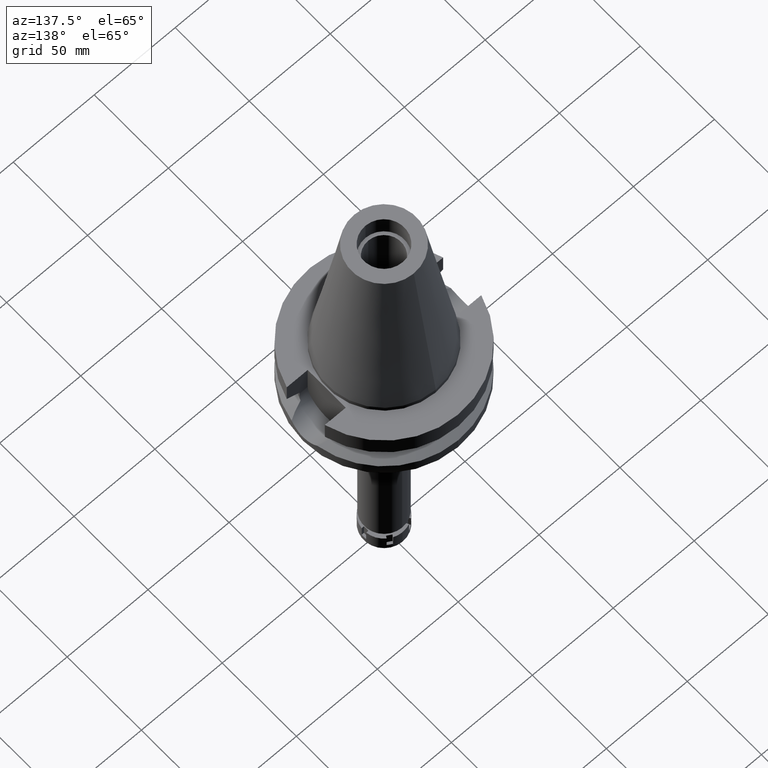
[diagram: clean part render]
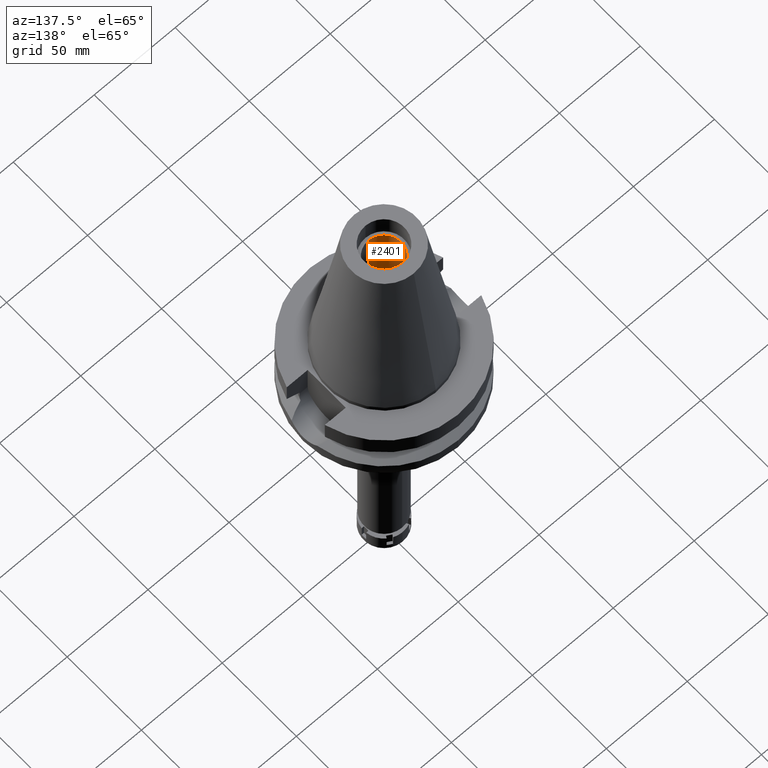
[diagram: same view with one face highlighted and labeled with its STEP entity id]
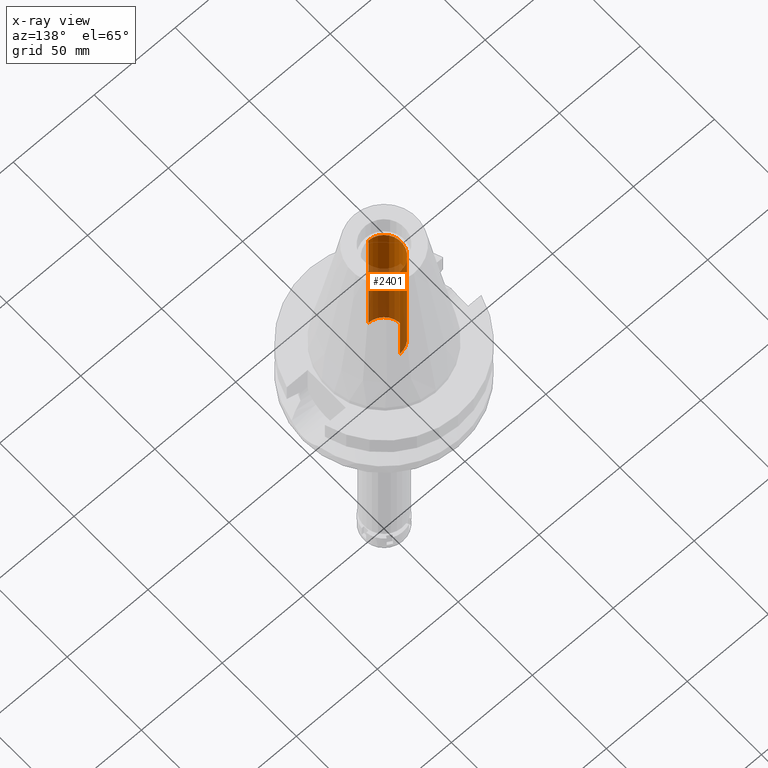
[diagram: x-ray of the same camera — body ghosted, the highlighted face saturated]
A machine part, auxiliary view. The second image highlights one B-rep face of the part: STEP entity #2401.
The next image is the same camera in x-ray: the body ghosted, the highlighted face saturated — about 57% of this face is hidden behind the body in this view.
In plain terms, the highlighted cylindrical surface (edge-blend (fillet) strip) has radius 10.6 mm, axis along (0, 0, -1).
Its self-contained STEP definition (entity closure, byte-faithful):
#447 = DIRECTION ( 'NONE',  ( 0.0000000000000000000, 1.000000000000000000, 0.0000000000000000000 ) ) ;
#558 = DIRECTION ( 'NONE',  ( 0.0000000000000000000, 0.0000000000000000000, 1.000000000000000000 ) ) ;
#621 = CARTESIAN_POINT ( 'NONE',  ( 0.0000000000000000000, 2.652462502272999887E-14, 116.5900000000000034 ) ) ;
#705 = CARTESIAN_POINT ( 'NONE',  ( 0.0000000000000000000, -10.59999999999999964, -1.278976924367999843E-13 ) ) ;
#1000 = AXIS2_PLACEMENT_3D ( 'NONE', #3579, #1273, #447 ) ;
#1248 = DIRECTION ( 'NONE',  ( 0.0000000000000000000, 0.0000000000000000000, -1.000000000000000000 ) ) ;
#1273 = DIRECTION ( 'NONE',  ( 0.0000000000000000000, 0.0000000000000000000, 1.000000000000000000 ) ) ;
#1304 = DIRECTION ( 'NONE',  ( 0.0000000000000000000, -1.000000000000000000, 0.0000000000000000000 ) ) ;
#1334 = EDGE_CURVE ( 'NONE', #2195, #2404, #2827, .T. ) ;
#1425 = EDGE_CURVE ( 'NONE', #3400, #1583, #1441, .T. ) ;
#1441 = LINE ( 'NONE', #2842, #2876 ) ;
#1583 = VERTEX_POINT ( 'NONE', #2400 ) ;
#2118 = ORIENTED_EDGE ( 'NONE', *, *, #1425, .F. ) ;
#2178 = ORIENTED_EDGE ( 'NONE', *, *, #3159, .T. ) ;
#2195 = VERTEX_POINT ( 'NONE', #3109 ) ;
#2254 = CIRCLE ( 'NONE', #1000, 10.59999999999999964 ) ;
#2400 = CARTESIAN_POINT ( 'NONE',  ( 0.0000000000000000000, -10.59999999999999964, 88.79999999999999716 ) ) ;
#2401 = ADVANCED_FACE ( 'NONE', ( #3484 ), #3196, .F. ) ;
#2404 = VERTEX_POINT ( 'NONE', #3007 ) ;
#2449 = DIRECTION ( 'NONE',  ( 0.0000000000000000000, -1.000000000000000000, 0.0000000000000000000 ) ) ;
#2556 = CIRCLE ( 'NONE', #2675, 10.59999999999999964 ) ;
#2675 = AXIS2_PLACEMENT_3D ( 'NONE', #3272, #1248, #1304 ) ;
#2827 = LINE ( 'NONE', #3120, #3526 ) ;
#2842 = CARTESIAN_POINT ( 'NONE',  ( 0.0000000000000000000, -10.59999999999999964, -1.278976924367999843E-13 ) ) ;
#2853 = AXIS2_PLACEMENT_3D ( 'NONE', #621, #3257, #2449 ) ;
#2864 = DIRECTION ( 'NONE',  ( 0.0000000000000000000, 0.0000000000000000000, 1.000000000000000000 ) ) ;
#2876 = VECTOR ( 'NONE', #2864, 1000.000000000000000 ) ;
#3007 = CARTESIAN_POINT ( 'NONE',  ( 0.0000000000000000000, 10.59999999999999964, 88.79999999999999716 ) ) ;
#3046 = EDGE_LOOP ( 'NONE', ( #3627, #2118, #2178, #3268 ) ) ;
#3109 = CARTESIAN_POINT ( 'NONE',  ( 0.0000000000000000000, 10.59999999999999964, -1.278976924367999843E-13 ) ) ;
#3120 = CARTESIAN_POINT ( 'NONE',  ( 0.0000000000000000000, 10.59999999999999964, -1.278976924367999843E-13 ) ) ;
#3159 = EDGE_CURVE ( 'NONE', #3400, #2195, #2556, .T. ) ;
#3196 = CYLINDRICAL_SURFACE ( 'NONE', #2853, 10.59999999999999964 ) ;
#3257 = DIRECTION ( 'NONE',  ( 0.0000000000000000000, 0.0000000000000000000, -1.000000000000000000 ) ) ;
#3268 = ORIENTED_EDGE ( 'NONE', *, *, #1334, .T. ) ;
#3272 = CARTESIAN_POINT ( 'NONE',  ( 0.0000000000000000000, 2.652462502272999887E-14, -1.278976924367999843E-13 ) ) ;
#3400 = VERTEX_POINT ( 'NONE', #705 ) ;
#3442 = EDGE_CURVE ( 'NONE', #2404, #1583, #2254, .T. ) ;
#3484 = FACE_OUTER_BOUND ( 'NONE', #3046, .T. ) ;
#3526 = VECTOR ( 'NONE', #558, 1000.000000000000000 ) ;
#3579 = CARTESIAN_POINT ( 'NONE',  ( 0.0000000000000000000, 2.652462502272999887E-14, 88.79999999999999716 ) ) ;
#3627 = ORIENTED_EDGE ( 'NONE', *, *, #3442, .T. ) ;